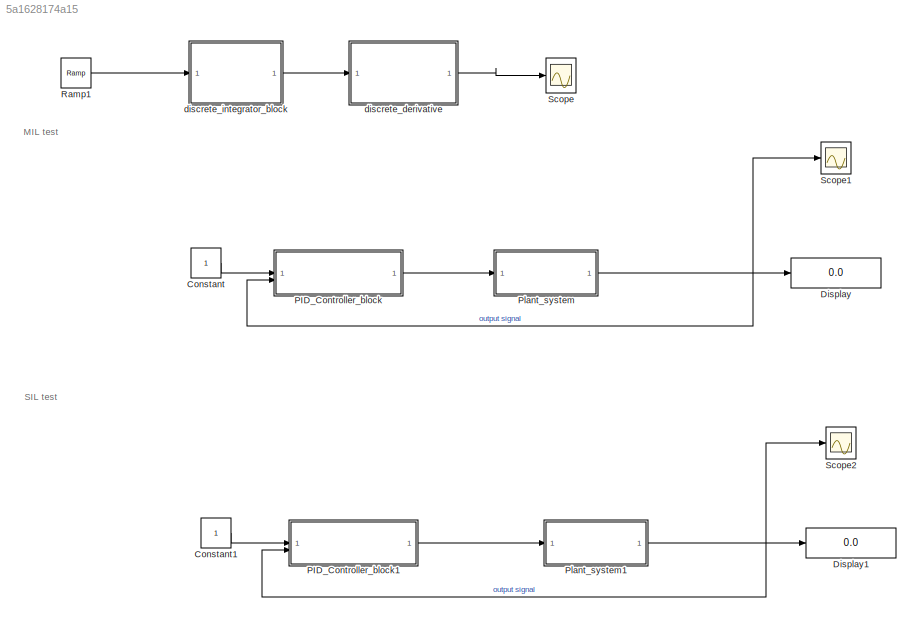
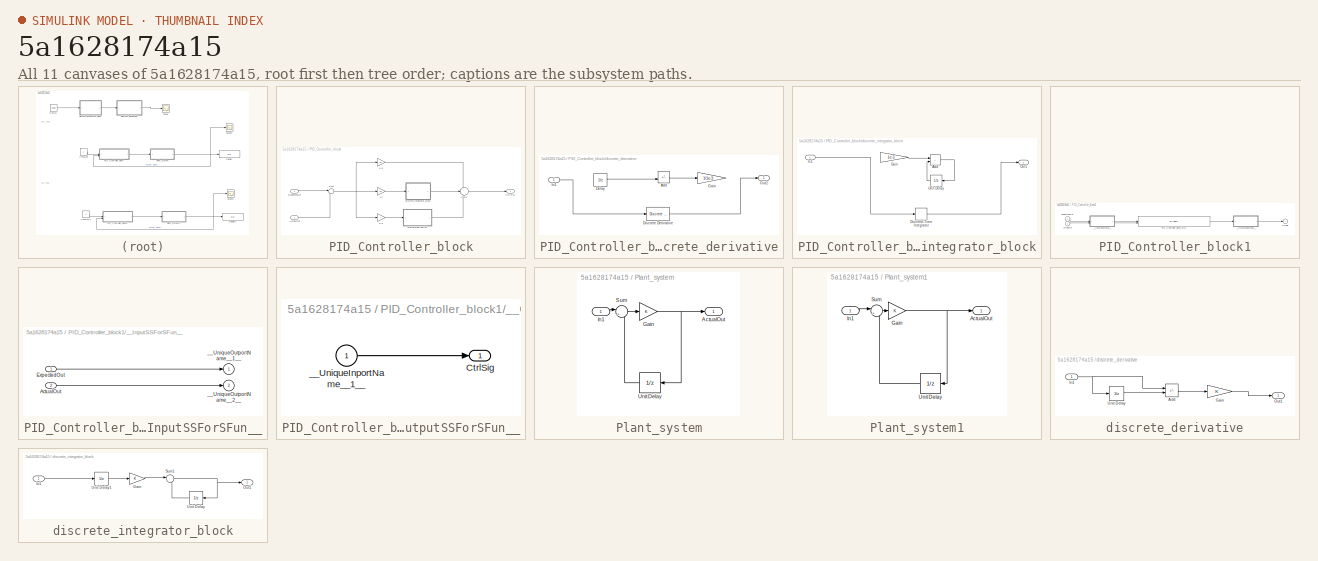
[diagram: thumbnail index - all 11 canvases of the model, root first then tree order]
MODEL slx_5a1628174a15
KIND model
CONFIG AbsTol = auto
CONFIG EnableMultiTasking = off
CONFIG FixedStep = 1e-3
CONFIG MaxStep = 1e-3
CONFIG MinStep = auto
CONFIG RelTol = 1e-3
CONFIG SampleTimeConstraint = Unconstrained
CONFIG SolverName = FixedStepDiscrete
CONFIG StartTime = 0.0
CONFIG StopTime = 10.0
BLOCK [Constant] Constant
BLOCK [Constant] Constant1
  Commented = on
BLOCK [Display] Display
  Decimation = 1
BLOCK [Display] Display1
  Commented = on
  Decimation = 1
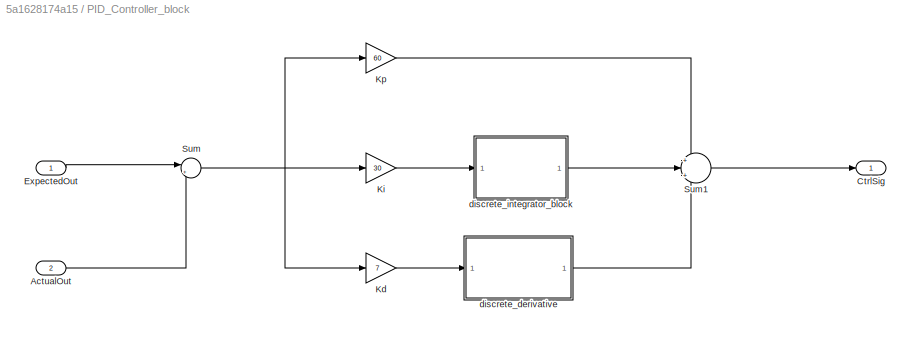
BLOCK [SubSystem] PID_Controller_block
  TreatAsAtomicUnit = on
BLOCK [Inport] PID_Controller_block/ActualOut
  Port = 2
BLOCK [Outport] PID_Controller_block/CtrlSig
BLOCK [Inport] PID_Controller_block/ExpectedOut
BLOCK [Gain] PID_Controller_block/Kd
  Gain = 7
BLOCK [Gain] PID_Controller_block/Ki
  Gain = 30
BLOCK [Gain] PID_Controller_block/Kp
  Gain = 60
BLOCK [Sum] PID_Controller_block/Sum
  Inputs = |+-
BLOCK [Sum] PID_Controller_block/Sum1
  Inputs = +|+|+
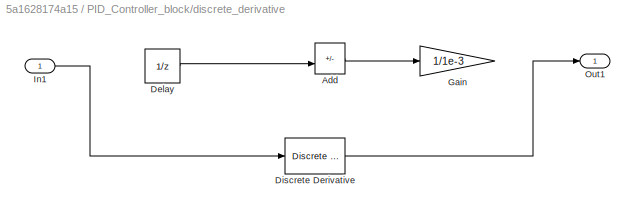
BLOCK [SubSystem] PID_Controller_block/discrete_derivative
  TreatAsAtomicUnit = on
BLOCK [Sum] PID_Controller_block/discrete_derivative/Add
  Commented = on
  IconShape = rectangular
  Inputs = +-
BLOCK [UnitDelay] PID_Controller_block/discrete_derivative/Delay
  Commented = on
  HasFrameUpgradeWarning = on
  SampleTime = -1
BLOCK [Reference] PID_Controller_block/discrete_derivative/Discrete Derivative  REF=simulink/Discrete/Discrete Derivative
  SourceBlock = simulink/Discrete/Discrete Derivative
  SourceType = Discrete Derivative
BLOCK [Gain] PID_Controller_block/discrete_derivative/Gain
  Commented = on
  Gain = 1/1e-3
BLOCK [Inport] PID_Controller_block/discrete_derivative/In1
BLOCK [Outport] PID_Controller_block/discrete_derivative/Out1
BLOCK [SubSystem] PID_Controller_block/discrete_integrator_block
  TreatAsAtomicUnit = on
BLOCK [Sum] PID_Controller_block/discrete_integrator_block/Add
  Commented = on
  IconShape = rectangular
BLOCK [DiscreteIntegrator] PID_Controller_block/discrete_integrator_block/Discrete-Time Integrator
  ICPrevOutput = DiscIntNeverNeededParam
  ICPrevScaledInput = DiscIntNeverNeededParam
  InitialConditionSetting = Auto
  SampleTime = -1
BLOCK [Gain] PID_Controller_block/discrete_integrator_block/Gain
  Commented = on
  Gain = 1e-3
BLOCK [Inport] PID_Controller_block/discrete_integrator_block/In1
BLOCK [Outport] PID_Controller_block/discrete_integrator_block/Out1
BLOCK [UnitDelay] PID_Controller_block/discrete_integrator_block/Unit Delay
  Commented = on
  HasFrameUpgradeWarning = on
  NameLocation = top
  SampleTime = -1
BLOCK [SubSystem] PID_Controller_block1
  Commented = on
  DialogController = pil_create_dialog
  LoadFcn = try\n   if ~strcmp(rtw.pil.getPILVersion, '24.1 (R2024a)_15')\n      set_param(gcb, 'DialogController', '');\n      set_param(gcb, 'DialogControllerArgs', '');\n   end\ncatch e\n      set_param(gcb, 'DialogController', '');\n      set_param(gcb, 'DialogControllerArgs', '');\nend
  Tag = __SL_testing_harness_stub_
BLOCK [Inport] PID_Controller_block1/ActualOut
  Port = 2
BLOCK [Outport] PID_Controller_block1/CtrlSig
BLOCK [Inport] PID_Controller_block1/ExpectedOut
BLOCK [Reference] PID_Controller_block1/PID_Controller_block_sfcn  REF=pil_lib/PIL Block
  SourceBlock = pil_lib/PIL Block
  SourceType = XILBlock
BLOCK [SubSystem] PID_Controller_block1/__InputSSForSFun__
  PermitHierarchicalResolution = ExplicitOnly
BLOCK [Inport] PID_Controller_block1/__InputSSForSFun__/ActualOut
  Port = 2
BLOCK [Inport] PID_Controller_block1/__InputSSForSFun__/ExpectedOut
BLOCK [Outport] PID_Controller_block1/__InputSSForSFun__/__UniqueOutportName__1__
BLOCK [Outport] PID_Controller_block1/__InputSSForSFun__/__UniqueOutportName__2__
  Port = 2
BLOCK [SubSystem] PID_Controller_block1/__OutputSSForSFun__
  PermitHierarchicalResolution = ExplicitOnly
BLOCK [Outport] PID_Controller_block1/__OutputSSForSFun__/CtrlSig
BLOCK [Inport] PID_Controller_block1/__OutputSSForSFun__/__UniqueInportName__1__
BLOCK [SubSystem] Plant_system
BLOCK [Outport] Plant_system/ActualOut
BLOCK [Gain] Plant_system/Gain
BLOCK [Inport] Plant_system/In1
BLOCK [Sum] Plant_system/Sum
  Inputs = |++
BLOCK [UnitDelay] Plant_system/Unit Delay
  HasFrameUpgradeWarning = on
  NameLocation = top
  SampleTime = -1
BLOCK [SubSystem] Plant_system1
  Commented = on
BLOCK [Outport] Plant_system1/ActualOut
BLOCK [Gain] Plant_system1/Gain
BLOCK [Inport] Plant_system1/In1
BLOCK [Sum] Plant_system1/Sum
  Inputs = |++
BLOCK [UnitDelay] Plant_system1/Unit Delay
  HasFrameUpgradeWarning = on
  InitialCondition = 1
  NameLocation = top
  SampleTime = -1
BLOCK [Reference] Ramp1  REF=simulink/Sources/Ramp
  Commented = on
  SourceBlock = simulink/Sources/Ramp
  SourceType = Ramp
BLOCK [Scope] Scope
  Commented = on
  Floating = off
  NumInputPorts = 2
  ScopeSpecificationString = Simulink.scopes.TimeScopeBlockCfg('CurrentConfiguration', extmgr.ConfigurationSet(extmgr.Configuration('Core','General UI',true),extmgr.Configuration('Core','Source UI',true),extmgr.Configuration('Sources','WiredSimulink',true),extmgr.Configuration('Visuals','Time Domain',true,'SerializedDisplays',{struct('MinYLimReal','-1.87487','MaxYLimReal','16.87387','YLabelReal','','MinYLimMag','0.00000','Max...<+2385ch>
BLOCK [Scope] Scope1
  Floating = off
  NumInputPorts = 1
  ScopeSpecificationString = Simulink.scopes.TimeScopeBlockCfg('CurrentConfiguration', extmgr.ConfigurationSet(extmgr.Configuration('Core','General UI',true),extmgr.Configuration('Core','Source UI',true),extmgr.Configuration('Sources','WiredSimulink',true,'DataLoggingVariableName','ScopeData1'),extmgr.Configuration('Visuals','Time Domain',true,'SerializedDisplays',{struct('MinYLimReal','0.98197','MaxYLimReal','1.00604','YLabe...<+1585ch>
BLOCK [Scope] Scope2
  Commented = on
  Floating = off
  NumInputPorts = 1
  ScopeSpecificationString = Simulink.scopes.TimeScopeBlockCfg('CurrentConfiguration', extmgr.ConfigurationSet(extmgr.Configuration('Core','General UI',true),extmgr.Configuration('Core','Source UI',true),extmgr.Configuration('Sources','WiredSimulink',true,'DataLoggingVariableName','ScopeData1'),extmgr.Configuration('Visuals','Time Domain',true,'SerializedDisplays',{struct('MinYLimReal','-1.00000','MaxYLimReal','1.00000','YLab...<+1552ch>
BLOCK [SubSystem] discrete_derivative
  Commented = on
BLOCK [Sum] discrete_derivative/Add
  IconShape = rectangular
  Inputs = +-
BLOCK [Gain] discrete_derivative/Gain
BLOCK [Inport] discrete_derivative/In1
BLOCK [Outport] discrete_derivative/Out1
BLOCK [UnitDelay] discrete_derivative/Unit Delay
  HasFrameUpgradeWarning = on
  SampleTime = -1
BLOCK [SubSystem] discrete_integrator_block
  Commented = on
  TreatAsAtomicUnit = on
BLOCK [Gain] discrete_integrator_block/Gain
BLOCK [Inport] discrete_integrator_block/In1
BLOCK [Outport] discrete_integrator_block/Out1
BLOCK [Sum] discrete_integrator_block/Sum1
  Inputs = |++
BLOCK [UnitDelay] discrete_integrator_block/Unit Delay
  HasFrameUpgradeWarning = on
  NameLocation = top
  SampleTime = -1
BLOCK [UnitDelay] discrete_integrator_block/Unit Delay1
  HasFrameUpgradeWarning = on
  SampleTime = -1
ANNOTATION (root): MIL test
ANNOTATION (root): SIL test
LINE Constant1:1 -> PID_Controller_block1:1
LINE Constant:1 -> PID_Controller_block:1
LINE PID_Controller_block/ActualOut:1 -> PID_Controller_block/Sum:2
LINE PID_Controller_block/ExpectedOut:1 -> PID_Controller_block/Sum:1
LINE PID_Controller_block/Kd:1 -> PID_Controller_block/discrete_derivative:1
LINE PID_Controller_block/Ki:1 -> PID_Controller_block/discrete_integrator_block:1
LINE PID_Controller_block/Kp:1 -> PID_Controller_block/Sum1:1
LINE PID_Controller_block/Sum1:1 -> PID_Controller_block/CtrlSig:1
NET PID_Controller_block/Sum:1 -> PID_Controller_block/Kd:1, PID_Controller_block/Ki:1, PID_Controller_block/Kp:1
LINE PID_Controller_block/discrete_derivative/Add:1 -> PID_Controller_block/discrete_derivative/Gain:1
LINE PID_Controller_block/discrete_derivative/Delay:1 -> PID_Controller_block/discrete_derivative/Add:2
LINE PID_Controller_block/discrete_derivative/Discrete Derivative:1 -> PID_Controller_block/discrete_derivative/Out1:1
LINE PID_Controller_block/discrete_derivative/In1:1 -> PID_Controller_block/discrete_derivative/Discrete Derivative:1
LINE PID_Controller_block/discrete_derivative:1 -> PID_Controller_block/Sum1:3
LINE PID_Controller_block/discrete_integrator_block/Add:1 -> PID_Controller_block/discrete_integrator_block/Unit Delay:1
LINE PID_Controller_block/discrete_integrator_block/Discrete-Time Integrator:1 -> PID_Controller_block/discrete_integrator_block/Out1:1
LINE PID_Controller_block/discrete_integrator_block/Gain:1 -> PID_Controller_block/discrete_integrator_block/Add:1
LINE PID_Controller_block/discrete_integrator_block/In1:1 -> PID_Controller_block/discrete_integrator_block/Discrete-Time Integrator:1
LINE PID_Controller_block/discrete_integrator_block/Unit Delay:1 -> PID_Controller_block/discrete_integrator_block/Add:2
LINE PID_Controller_block/discrete_integrator_block:1 -> PID_Controller_block/Sum1:2
LINE PID_Controller_block1:1 -> Plant_system1:1
LINE PID_Controller_block:1 -> Plant_system:1
NET Plant_system/Gain:1 -> Plant_system/ActualOut:1, Plant_system/Unit Delay:1
LINE Plant_system/In1:1 -> Plant_system/Sum:1
LINE Plant_system/Sum:1 -> Plant_system/Gain:1
LINE Plant_system/Unit Delay:1 -> Plant_system/Sum:2
NET Plant_system1/Gain:1 -> Plant_system1/ActualOut:1, Plant_system1/Unit Delay:1
LINE Plant_system1/In1:1 -> Plant_system1/Sum:1
LINE Plant_system1/Sum:1 -> Plant_system1/Gain:1
LINE Plant_system1/Unit Delay:1 -> Plant_system1/Sum:2
NET Plant_system1:1 -> Display1:1, PID_Controller_block1:2, Scope2:1
NET Plant_system:1 -> Display:1, PID_Controller_block:2, Scope1:1
LINE Ramp1:1 -> discrete_integrator_block:1
LINE discrete_derivative/Add:1 -> discrete_derivative/Gain:1
LINE discrete_derivative/Gain:1 -> discrete_derivative/Out1:1
NET discrete_derivative/In1:1 -> discrete_derivative/Add:1, discrete_derivative/Unit Delay:1
LINE discrete_derivative/Unit Delay:1 -> discrete_derivative/Add:2
LINE discrete_derivative:1 -> Scope:1
LINE discrete_integrator_block/Gain:1 -> discrete_integrator_block/Sum1:1
LINE discrete_integrator_block/In1:1 -> discrete_integrator_block/Unit Delay1:1
NET discrete_integrator_block/Sum1:1 -> discrete_integrator_block/Out1:1, discrete_integrator_block/Unit Delay:1
LINE discrete_integrator_block/Unit Delay1:1 -> discrete_integrator_block/Gain:1
LINE discrete_integrator_block/Unit Delay:1 -> discrete_integrator_block/Sum1:2
LINE discrete_integrator_block:1 -> discrete_derivative:1
note: NET lines group one-source signal fan-out (src -> all destinations, sorted); 1:1 wires keep LINE
